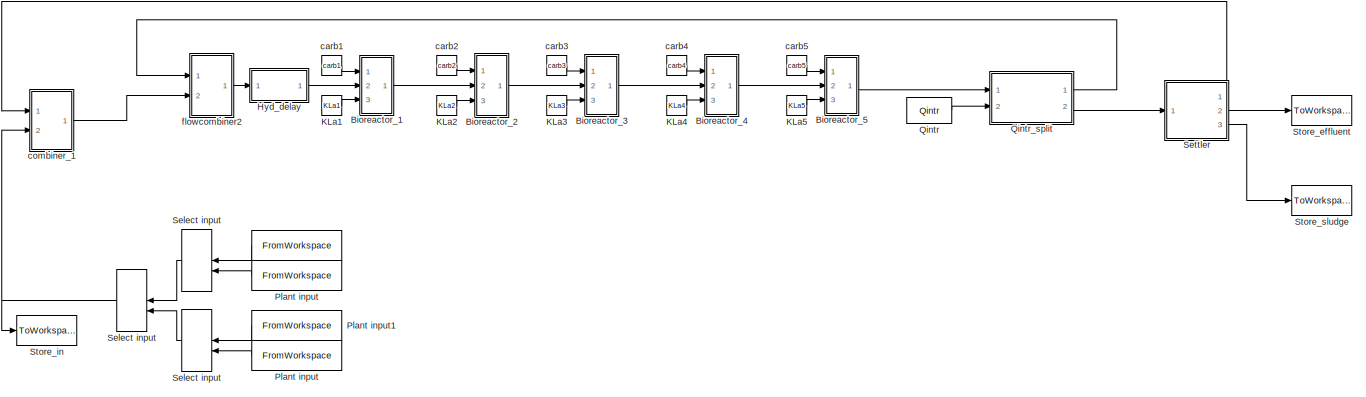
[diagram: root canvas - part 1/2, most of the canvas]
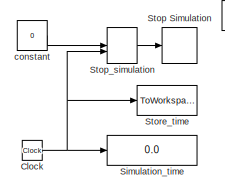
[diagram: root canvas - part 2/2, bottom left region]
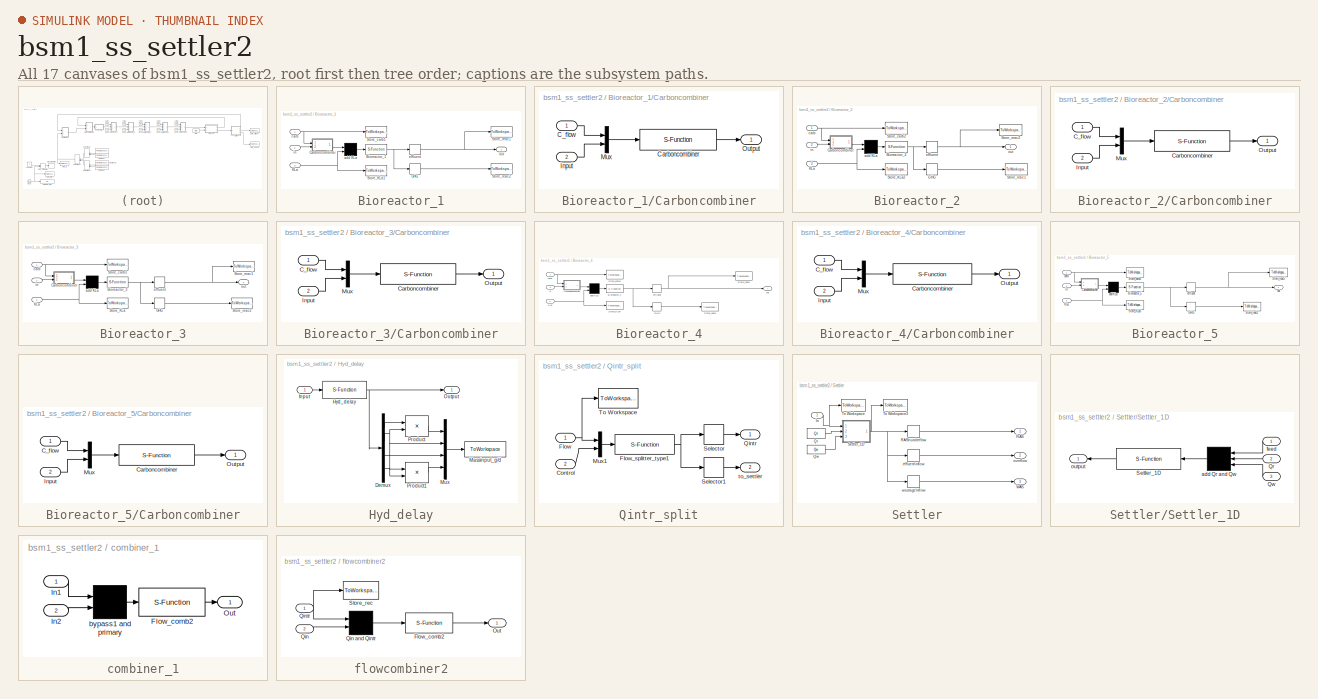
[diagram: thumbnail index - all 17 canvases of the model, root first then tree order]
MODEL bsm1_ss_settler2
KIND model
BLOCK [FromWorkspace]  
  OutputAfterFinalValue = Holding final value
  SID = 649
  VariableName = CONSTINFLUENT
BLOCK [ManualSwitch]  Select input
  SID = 650
BLOCK [Constant]  constant
  SID = 2
  Value = 0
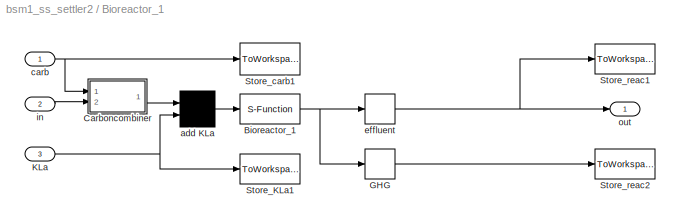
BLOCK [SubSystem] Bioreactor_1
  FunctionWithSeparateData = off
  MaskHideContents = off
  MinAlgLoopOccurrences = off
  Opaque = off
  Ports = [3, 1]
  PropExecContextOutsideSubsystem = off
  RTWSystemCode = Auto
  RequestExecContextInheritance = off
  SID = 511
BLOCK [S-Function] Bioreactor_1/Bioreactor_1
  EnableBusSupport = off
  FunctionName = asm1_bsm1
  Parameters = XINIT1,PAR1,VOL1,SOSAT1,TEMPMODEL,ACTIVATE
  Ports = [1, 1]
  SID = 515
BLOCK [SubSystem] Bioreactor_1/Carboncombiner
  FunctionWithSeparateData = off
  MaskHideContents = off
  MinAlgLoopOccurrences = off
  Opaque = off
  Ports = [2, 1]
  PropExecContextOutsideSubsystem = off
  RTWSystemCode = Auto
  RequestExecContextInheritance = off
  SID = 516
BLOCK [Inport] Bioreactor_1/Carboncombiner/C_flow
  IconDisplay = Port number
  SID = 517
BLOCK [S-Function] Bioreactor_1/Carboncombiner/Carboncombiner
  EnableBusSupport = off
  FunctionName = carboncombiner_bsm1
  Parameters = CARBONSOURCECONC
  Ports = [1, 1]
  SID = 519
BLOCK [Inport] Bioreactor_1/Carboncombiner/Input
  IconDisplay = Port number
  Port = 2
  SID = 518
BLOCK [Mux] Bioreactor_1/Carboncombiner/Mux
  DisplayOption = bar
  Inputs = 2
  Ports = [2, 1]
  SID = 520
BLOCK [Outport] Bioreactor_1/Carboncombiner/Output
  IconDisplay = Port number
  SID = 521
BLOCK [Selector] Bioreactor_1/GHG
  IndexOptions = Index vector (dialog)
  Indices = [27:29]
  InputPortWidth = 29
  OutputSizes = 1
  Ports = [1, 1]
  SID = 522
BLOCK [Inport] Bioreactor_1/KLa
  IconDisplay = Port number
  Port = 3
  SID = 514
BLOCK [ToWorkspace] Bioreactor_1/Store_KLa1
  MaxDataPoints = inf
  Ports = [1]
  SID = 523
  SampleTime = -1
  VariableName = kla1in
BLOCK [ToWorkspace] Bioreactor_1/Store_carb1
  MaxDataPoints = inf
  Ports = [1]
  SID = 524
  SampleTime = -1
  VariableName = carbon1in
BLOCK [ToWorkspace] Bioreactor_1/Store_reac1
  MaxDataPoints = inf
  Ports = [1]
  SID = 525
  SampleTime = -1
  VariableName = reac1
BLOCK [ToWorkspace] Bioreactor_1/Store_reac2
  MaxDataPoints = inf
  Ports = [1]
  SID = 526
  SampleTime = -1
  VariableName = GHG_reac1
BLOCK [Mux] Bioreactor_1/add KLa
  Inputs = 2
  Ports = [2, 1]
  SID = 527
BLOCK [Inport] Bioreactor_1/carb
  IconDisplay = Port number
  SID = 512
BLOCK [Selector] Bioreactor_1/effluent
  IndexOptions = Index vector (dialog)
  Indices = [1:26]
  InputPortWidth = 29
  OutputSizes = 1
  Ports = [1, 1]
  SID = 528
BLOCK [Inport] Bioreactor_1/in
  IconDisplay = Port number
  Port = 2
  SID = 513
BLOCK [Outport] Bioreactor_1/out
  IconDisplay = Port number
  SID = 529
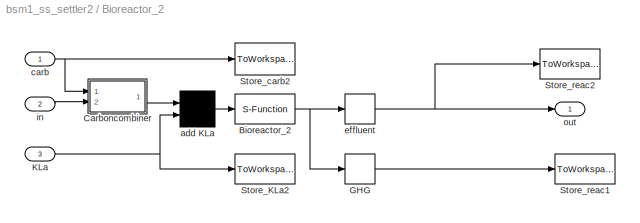
BLOCK [SubSystem] Bioreactor_2
  FunctionWithSeparateData = off
  MaskHideContents = off
  MinAlgLoopOccurrences = off
  Opaque = off
  Ports = [3, 1]
  PropExecContextOutsideSubsystem = off
  RTWSystemCode = Auto
  RequestExecContextInheritance = off
  SID = 530
BLOCK [S-Function] Bioreactor_2/Bioreactor_2
  EnableBusSupport = off
  FunctionName = asm1_bsm1
  Parameters = XINIT2,PAR2,VOL2,SOSAT2,TEMPMODEL,ACTIVATE
  Ports = [1, 1]
  SID = 534
BLOCK [SubSystem] Bioreactor_2/Carboncombiner
  FunctionWithSeparateData = off
  MaskHideContents = off
  MinAlgLoopOccurrences = off
  Opaque = off
  Ports = [2, 1]
  PropExecContextOutsideSubsystem = off
  RTWSystemCode = Auto
  RequestExecContextInheritance = off
  SID = 535
BLOCK [Inport] Bioreactor_2/Carboncombiner/C_flow
  IconDisplay = Port number
  SID = 536
BLOCK [S-Function] Bioreactor_2/Carboncombiner/Carboncombiner
  EnableBusSupport = off
  FunctionName = carboncombiner_bsm1
  Parameters = CARBONSOURCECONC
  Ports = [1, 1]
  SID = 538
BLOCK [Inport] Bioreactor_2/Carboncombiner/Input
  IconDisplay = Port number
  Port = 2
  SID = 537
BLOCK [Mux] Bioreactor_2/Carboncombiner/Mux
  DisplayOption = bar
  Inputs = 2
  Ports = [2, 1]
  SID = 539
BLOCK [Outport] Bioreactor_2/Carboncombiner/Output
  IconDisplay = Port number
  SID = 540
BLOCK [Selector] Bioreactor_2/GHG
  IndexOptions = Index vector (dialog)
  Indices = [27:29]
  InputPortWidth = 29
  OutputSizes = 1
  Ports = [1, 1]
  SID = 541
BLOCK [Inport] Bioreactor_2/KLa
  IconDisplay = Port number
  Port = 3
  SID = 533
BLOCK [ToWorkspace] Bioreactor_2/Store_KLa2
  MaxDataPoints = inf
  Ports = [1]
  SID = 542
  SampleTime = -1
  VariableName = kla2in
BLOCK [ToWorkspace] Bioreactor_2/Store_carb2
  MaxDataPoints = inf
  Ports = [1]
  SID = 543
  SampleTime = -1
  VariableName = carbon2in
BLOCK [ToWorkspace] Bioreactor_2/Store_reac1
  MaxDataPoints = inf
  Ports = [1]
  SID = 544
  SampleTime = -1
  VariableName = GHG_reac2
BLOCK [ToWorkspace] Bioreactor_2/Store_reac2
  MaxDataPoints = inf
  Ports = [1]
  SID = 545
  SampleTime = -1
  VariableName = reac2
BLOCK [Mux] Bioreactor_2/add KLa
  Inputs = 2
  Ports = [2, 1]
  SID = 546
BLOCK [Inport] Bioreactor_2/carb
  IconDisplay = Port number
  SID = 531
BLOCK [Selector] Bioreactor_2/effluent
  IndexOptions = Index vector (dialog)
  Indices = [1:26]
  InputPortWidth = 29
  OutputSizes = 1
  Ports = [1, 1]
  SID = 547
BLOCK [Inport] Bioreactor_2/in
  IconDisplay = Port number
  Port = 2
  SID = 532
BLOCK [Outport] Bioreactor_2/out
  IconDisplay = Port number
  SID = 548
BLOCK [SubSystem] Bioreactor_3
  FunctionWithSeparateData = off
  MaskHideContents = off
  MinAlgLoopOccurrences = off
  Opaque = off
  Ports = [3, 1]
  PropExecContextOutsideSubsystem = off
  RTWSystemCode = Auto
  RequestExecContextInheritance = off
  SID = 549
BLOCK [S-Function] Bioreactor_3/Bioreactor_3
  EnableBusSupport = off
  FunctionName = asm1_bsm1
  Parameters = XINIT3,PAR3,VOL3,SOSAT3,TEMPMODEL,ACTIVATE
  Ports = [1, 1]
  SID = 553
BLOCK [SubSystem] Bioreactor_3/Carboncombiner
  FunctionWithSeparateData = off
  MaskHideContents = off
  MinAlgLoopOccurrences = off
  Opaque = off
  Ports = [2, 1]
  PropExecContextOutsideSubsystem = off
  RTWSystemCode = Auto
  RequestExecContextInheritance = off
  SID = 554
BLOCK [Inport] Bioreactor_3/Carboncombiner/C_flow
  IconDisplay = Port number
  SID = 555
BLOCK [S-Function] Bioreactor_3/Carboncombiner/Carboncombiner
  EnableBusSupport = off
  FunctionName = carboncombiner_bsm1
  Parameters = CARBONSOURCECONC
  Ports = [1, 1]
  SID = 557
BLOCK [Inport] Bioreactor_3/Carboncombiner/Input
  IconDisplay = Port number
  Port = 2
  SID = 556
BLOCK [Mux] Bioreactor_3/Carboncombiner/Mux
  DisplayOption = bar
  Inputs = 2
  Ports = [2, 1]
  SID = 558
BLOCK [Outport] Bioreactor_3/Carboncombiner/Output
  IconDisplay = Port number
  SID = 559
BLOCK [Selector] Bioreactor_3/GHG
  IndexOptions = Index vector (dialog)
  Indices = [27:29]
  InputPortWidth = 29
  OutputSizes = 1
  Ports = [1, 1]
  SID = 560
BLOCK [Inport] Bioreactor_3/KLa
  IconDisplay = Port number
  Port = 3
  SID = 552
BLOCK [ToWorkspace] Bioreactor_3/Store_KLa
  MaxDataPoints = inf
  Ports = [1]
  SID = 561
  SampleTime = -1
  VariableName = kla3in
BLOCK [ToWorkspace] Bioreactor_3/Store_carb3
  MaxDataPoints = inf
  Ports = [1]
  SID = 562
  SampleTime = -1
  VariableName = carbon3in
BLOCK [ToWorkspace] Bioreactor_3/Store_reac1
  MaxDataPoints = inf
  Ports = [1]
  SID = 563
  SampleTime = -1
  VariableName = reac3
BLOCK [ToWorkspace] Bioreactor_3/Store_reac2
  MaxDataPoints = inf
  Ports = [1]
  SID = 564
  SampleTime = -1
  VariableName = GHG_reac3
BLOCK [Mux] Bioreactor_3/add KLa
  Inputs = 2
  Ports = [2, 1]
  SID = 565
BLOCK [Inport] Bioreactor_3/carb
  IconDisplay = Port number
  SID = 550
BLOCK [Selector] Bioreactor_3/effluent
  IndexOptions = Index vector (dialog)
  Indices = [1:26]
  InputPortWidth = 29
  OutputSizes = 1
  Ports = [1, 1]
  SID = 566
BLOCK [Inport] Bioreactor_3/in
  IconDisplay = Port number
  Port = 2
  SID = 551
BLOCK [Outport] Bioreactor_3/out
  IconDisplay = Port number
  SID = 567
BLOCK [SubSystem] Bioreactor_4
  FunctionWithSeparateData = off
  MaskHideContents = off
  MinAlgLoopOccurrences = off
  Opaque = off
  Ports = [3, 1]
  PropExecContextOutsideSubsystem = off
  RTWSystemCode = Auto
  RequestExecContextInheritance = off
  SID = 568
BLOCK [S-Function] Bioreactor_4/Bioreactor_4
  EnableBusSupport = off
  FunctionName = asm1_bsm1
  Parameters = XINIT4,PAR4,VOL4,SOSAT4,TEMPMODEL,ACTIVATE
  Ports = [1, 1]
  SID = 572
BLOCK [SubSystem] Bioreactor_4/Carboncombiner
  FunctionWithSeparateData = off
  MaskHideContents = off
  MinAlgLoopOccurrences = off
  Opaque = off
  Ports = [2, 1]
  PropExecContextOutsideSubsystem = off
  RTWSystemCode = Auto
  RequestExecContextInheritance = off
  SID = 573
BLOCK [Inport] Bioreactor_4/Carboncombiner/C_flow
  IconDisplay = Port number
  SID = 574
BLOCK [S-Function] Bioreactor_4/Carboncombiner/Carboncombiner
  EnableBusSupport = off
  FunctionName = carboncombiner_bsm1
  Parameters = CARBONSOURCECONC
  Ports = [1, 1]
  SID = 576
BLOCK [Inport] Bioreactor_4/Carboncombiner/Input
  IconDisplay = Port number
  Port = 2
  SID = 575
BLOCK [Mux] Bioreactor_4/Carboncombiner/Mux
  DisplayOption = bar
  Inputs = 2
  Ports = [2, 1]
  SID = 577
BLOCK [Outport] Bioreactor_4/Carboncombiner/Output
  IconDisplay = Port number
  SID = 578
BLOCK [Selector] Bioreactor_4/GHG
  IndexOptions = Index vector (dialog)
  Indices = [27:29]
  InputPortWidth = 29
  OutputSizes = 1
  Ports = [1, 1]
  SID = 579
BLOCK [Inport] Bioreactor_4/KLa
  IconDisplay = Port number
  Port = 3
  SID = 571
BLOCK [ToWorkspace] Bioreactor_4/Store_KLa4
  MaxDataPoints = inf
  Ports = [1]
  SID = 580
  SampleTime = -1
  VariableName = kla4in
BLOCK [ToWorkspace] Bioreactor_4/Store_carb4
  MaxDataPoints = inf
  Ports = [1]
  SID = 581
  SampleTime = -1
  VariableName = carbon4in
BLOCK [ToWorkspace] Bioreactor_4/Store_reac1
  MaxDataPoints = inf
  Ports = [1]
  SID = 582
  SampleTime = -1
  VariableName = GHG_reac4
BLOCK [ToWorkspace] Bioreactor_4/Store_reac4
  MaxDataPoints = inf
  Ports = [1]
  SID = 583
  SampleTime = -1
  VariableName = reac4
BLOCK [Mux] Bioreactor_4/add KLa
  Inputs = 2
  Ports = [2, 1]
  SID = 584
BLOCK [Inport] Bioreactor_4/carb
  IconDisplay = Port number
  SID = 569
BLOCK [Selector] Bioreactor_4/effluent
  IndexOptions = Index vector (dialog)
  Indices = [1:26]
  InputPortWidth = 29
  OutputSizes = 1
  Ports = [1, 1]
  SID = 585
BLOCK [Inport] Bioreactor_4/in
  IconDisplay = Port number
  Port = 2
  SID = 570
BLOCK [Outport] Bioreactor_4/out
  IconDisplay = Port number
  SID = 586
BLOCK [SubSystem] Bioreactor_5
  FunctionWithSeparateData = off
  MaskHideContents = off
  MinAlgLoopOccurrences = off
  Opaque = off
  Ports = [3, 1]
  PropExecContextOutsideSubsystem = off
  RTWSystemCode = Auto
  RequestExecContextInheritance = off
  SID = 587
BLOCK [S-Function] Bioreactor_5/Bioreactor_5
  EnableBusSupport = off
  FunctionName = asm1_bsm1
  Parameters = XINIT5,PAR5,VOL5,SOSAT5,TEMPMODEL,ACTIVATE
  Ports = [1, 1]
  SID = 591
BLOCK [SubSystem] Bioreactor_5/Carboncombiner
  FunctionWithSeparateData = off
  MaskHideContents = off
  MinAlgLoopOccurrences = off
  Opaque = off
  Ports = [2, 1]
  PropExecContextOutsideSubsystem = off
  RTWSystemCode = Auto
  RequestExecContextInheritance = off
  SID = 592
BLOCK [Inport] Bioreactor_5/Carboncombiner/C_flow
  IconDisplay = Port number
  SID = 593
BLOCK [S-Function] Bioreactor_5/Carboncombiner/Carboncombiner
  EnableBusSupport = off
  FunctionName = carboncombiner_bsm1
  Parameters = CARBONSOURCECONC
  Ports = [1, 1]
  SID = 595
BLOCK [Inport] Bioreactor_5/Carboncombiner/Input
  IconDisplay = Port number
  Port = 2
  SID = 594
BLOCK [Mux] Bioreactor_5/Carboncombiner/Mux
  DisplayOption = bar
  Inputs = 2
  Ports = [2, 1]
  SID = 596
BLOCK [Outport] Bioreactor_5/Carboncombiner/Output
  IconDisplay = Port number
  SID = 597
BLOCK [Selector] Bioreactor_5/GHG
  IndexOptions = Index vector (dialog)
  Indices = [27:29]
  InputPortWidth = 29
  OutputSizes = 1
  Ports = [1, 1]
  SID = 598
BLOCK [Inport] Bioreactor_5/KLa
  IconDisplay = Port number
  Port = 3
  SID = 590
BLOCK [ToWorkspace] Bioreactor_5/Store_KLa5
  MaxDataPoints = inf
  Ports = [1]
  SID = 599
  SampleTime = -1
  VariableName = kla5in
BLOCK [ToWorkspace] Bioreactor_5/Store_carb5
  MaxDataPoints = inf
  Ports = [1]
  SID = 600
  SampleTime = -1
  VariableName = carbon5in
BLOCK [ToWorkspace] Bioreactor_5/Store_reac1
  MaxDataPoints = inf
  Ports = [1]
  SID = 601
  SampleTime = -1
  VariableName = GHG_reac5
BLOCK [ToWorkspace] Bioreactor_5/Store_reac5
  MaxDataPoints = inf
  Ports = [1]
  SID = 602
  SampleTime = -1
  VariableName = reac5
BLOCK [Mux] Bioreactor_5/add KLa
  Inputs = 2
  Ports = [2, 1]
  SID = 603
BLOCK [Inport] Bioreactor_5/carb
  IconDisplay = Port number
  SID = 588
BLOCK [Selector] Bioreactor_5/effluent
  IndexOptions = Index vector (dialog)
  Indices = [1:26]
  InputPortWidth = 29
  OutputSizes = 1
  Ports = [1, 1]
  SID = 604
BLOCK [Inport] Bioreactor_5/in
  IconDisplay = Port number
  Port = 2
  SID = 589
BLOCK [Outport] Bioreactor_5/out
  IconDisplay = Port number
  SID = 605
BLOCK [Clock] Clock
  SID = 176
BLOCK [SubSystem] Hyd_delay
  FunctionWithSeparateData = off
  MaskHideContents = off
  MinAlgLoopOccurrences = off
  Opaque = off
  Ports = [1, 1]
  PropExecContextOutsideSubsystem = off
  RTWSystemCode = Auto
  RequestExecContextInheritance = off
  SID = 606
BLOCK [Demux] Hyd_delay/Demux
  Outputs = [14,1,1,10]
  Ports = [1, 4]
  SID = 608
BLOCK [S-Function] Hyd_delay/Hyd_delay
  EnableBusSupport = off
  FunctionName = hyddelayv3_bsm1
  Parameters = XINITDELAY,PAR1,T
  Ports = [1, 1]
  SID = 609
BLOCK [Inport] Hyd_delay/Input
  IconDisplay = Port number
  SID = 607
BLOCK [ToWorkspace] Hyd_delay/Massinput_g//d
  MaxDataPoints = inf
  Ports = [1]
  SID = 610
  SampleTime = -1
  VariableName = ASinput
BLOCK [Mux] Hyd_delay/Mux
  DisplayOption = bar
  Ports = [4, 1]
  SID = 611
BLOCK [Outport] Hyd_delay/Output
  IconDisplay = Port number
  SID = 614
BLOCK [Product] Hyd_delay/Product
  InputSameDT = off
  Ports = [2, 1]
  RndMeth = Floor
  SID = 612
BLOCK [Product] Hyd_delay/Product1
  InputSameDT = off
  Ports = [2, 1]
  RndMeth = Floor
  SID = 613
BLOCK [Constant] KLa1
  SID = 615
  Value = KLa1
BLOCK [Constant] KLa2
  SID = 616
  Value = KLa2
BLOCK [Constant] KLa3
  SID = 617
  Value = KLa3
BLOCK [Constant] KLa4
  SID = 618
  Value = KLa4
BLOCK [Constant] KLa5
  SID = 619
  Value = KLa5
BLOCK [FromWorkspace] Plant input
  Interpolate = off
  OutputAfterFinalValue = Holding final value
  SID = 651
  VariableName = DRYINFLUENT
BLOCK [FromWorkspace] Plant input 
  OutputAfterFinalValue = Holding final value
  SID = 652
  VariableName = STORMINFLUENT
BLOCK [FromWorkspace] Plant input1
  OutputAfterFinalValue = Holding final value
  SID = 653
  VariableName = RAININFLUENT
BLOCK [Constant] Qintr
  SID = 620
  Value = Qintr
BLOCK [SubSystem] Qintr_split
  FunctionWithSeparateData = off
  MaskHideContents = off
  MinAlgLoopOccurrences = off
  Opaque = off
  Ports = [2, 2]
  PropExecContextOutsideSubsystem = off
  RTWSystemCode = Auto
  RequestExecContextInheritance = off
  SID = 621
BLOCK [Inport] Qintr_split/Control
  IconDisplay = Port number
  Port = 2
  SID = 623
BLOCK [Inport] Qintr_split/Flow
  IconDisplay = Port number
  SID = 622
BLOCK [S-Function] Qintr_split/Flow_splitter_type1
  EnableBusSupport = off
  FunctionName = flowsplitter_bsm1
  Parameters = Qintrtype
  Ports = [1, 1]
  SID = 624
BLOCK [Mux] Qintr_split/Mux1
  DisplayOption = bar
  Inputs = 2
  Ports = [2, 1]
  SID = 625
BLOCK [Outport] Qintr_split/Qintr
  IconDisplay = Port number
  SID = 628
BLOCK [Selector] Qintr_split/Selector
  IndexOptions = Index vector (dialog)
  Indices = [1:26]
  InputPortWidth = 52
  OutputSizes = 1
  Ports = [1, 1]
  SID = 626
BLOCK [Selector] Qintr_split/Selector1
  IndexOptions = Index vector (dialog)
  Indices = [27:52]
  InputPortWidth = 52
  OutputSizes = 1
  Ports = [1, 1]
  SID = 627
BLOCK [ToWorkspace] Qintr_split/To Workspace
  MaxDataPoints = inf
  Ports = [1]
  SID = 657
  VariableName = feed1
BLOCK [Outport] Qintr_split/to_settler
  IconDisplay = Port number
  Port = 2
  SID = 629
BLOCK [ManualSwitch] Select input
  SID = 654
BLOCK [ManualSwitch] Select input 
  CurrentSetting = 0
  SID = 655
BLOCK [SubSystem] Settler
  FunctionWithSeparateData = off
  MaskHideContents = off
  MinAlgLoopOccurrences = off
  Opaque = off
  Ports = [1, 3]
  PropExecContextOutsideSubsystem = off
  RTWSystemCode = Auto
  RequestExecContextInheritance = off
  SID = 292
BLOCK [Inport] Settler/In
  IconDisplay = Port number
  SID = 293
BLOCK [Constant] Settler/Qr
  SID = 294
  Value = Qr
BLOCK [Constant] Settler/Qw
  SID = 295
  Value = Qw
BLOCK [Outport] Settler/RAS
  IconDisplay = Port number
  SID = 308
BLOCK [Selector] Settler/RAS\nunderflow
  IndexOptions = Index vector (dialog)
  Indices = [1:26]
  InputPortWidth = 215
  OutputSizes = 1
  Ports = [1, 1]
  SID = 296
BLOCK [SubSystem] Settler/Settler_1D
  FunctionWithSeparateData = off
  MaskHideContents = off
  MinAlgLoopOccurrences = off
  Opaque = off
  Ports = [3, 1]
  PropExecContextOutsideSubsystem = off
  RTWSystemCode = Auto
  RequestExecContextInheritance = off
  SID = 297
BLOCK [Inport] Settler/Settler_1D/Qr
  IconDisplay = Port number
  Port = 2
  SID = 299
BLOCK [Inport] Settler/Settler_1D/Qw
  IconDisplay = Port number
  Port = 3
  SID = 300
BLOCK [S-Function] Settler/Settler_1D/Settler_1D
  EnableBusSupport = off
  FunctionName = settler1dv4_4_UJ
  Parameters = SETTLERINIT,SETTLERPAR,DIM,LAYER,TEMPMODEL, MODELTYPE
  Ports = [1, 1]
  SID = 301
BLOCK [Mux] Settler/Settler_1D/add Qr and Qw
  Inputs = 3
  Ports = [3, 1]
  SID = 302
BLOCK [Inport] Settler/Settler_1D/feed
  IconDisplay = Port number
  SID = 298
BLOCK [Outport] Settler/Settler_1D/output
  IconDisplay = Port number
  SID = 303
BLOCK [ToWorkspace] Settler/To Workspace
  MaxDataPoints = inf
  Ports = [1]
  SID = 304
  VariableName = feed
BLOCK [ToWorkspace] Settler/To Workspace3
  MaxDataPoints = inf
  Ports = [1]
  SID = 305
  VariableName = settler
BLOCK [Outport] Settler/WAS
  IconDisplay = Port number
  Port = 3
  SID = 310
BLOCK [Selector] Settler/effluent\nflow
  IndexOptions = Index vector (dialog)
  Indices = [28:53]
  InputPortWidth = 215
  OutputSizes = 1
  Ports = [1, 1]
  SID = 306
BLOCK [Outport] Settler/overflow
  IconDisplay = Port number
  Port = 2
  SID = 309
BLOCK [Selector] Settler/wastage\nflow
  IndexOptions = Index vector (dialog)
  Indices = [1:14, 27, 16:26]
  InputPortWidth = 215
  OutputSizes = 1
  Ports = [1, 1]
  SID = 307
BLOCK [Display] Simulation_time
  Decimation = 1
  Lockdown = off
  Ports = [1]
  SID = 311
BLOCK [Stop] Stop Simulation
  SID = 312
BLOCK [ManualSwitch] Stop_simulation
  SID = 313
BLOCK [ToWorkspace] Store_effluent
  MaxDataPoints = inf
  Ports = [1]
  SID = 333
  VariableName = effluent
BLOCK [ToWorkspace] Store_in
  MaxDataPoints = inf
  Ports = [1]
  SID = 656
  SampleTime = -1
  VariableName = in
BLOCK [ToWorkspace] Store_sludge
  MaxDataPoints = inf
  Ports = [1]
  SID = 335
  VariableName = sludge
BLOCK [ToWorkspace] Store_time
  MaxDataPoints = inf
  Ports = [1]
  SID = 336
  VariableName = time
BLOCK [Constant] carb1
  SID = 630
  Value = carb1
BLOCK [Constant] carb2
  SID = 631
  Value = carb2
BLOCK [Constant] carb3
  SID = 632
  Value = carb3
BLOCK [Constant] carb4
  SID = 633
  Value = carb4
BLOCK [Constant] carb5
  SID = 634
  Value = carb5
BLOCK [SubSystem] combiner_1
  FunctionWithSeparateData = off
  MaskHideContents = off
  MinAlgLoopOccurrences = off
  Opaque = off
  Ports = [2, 1]
  PropExecContextOutsideSubsystem = off
  RTWSystemCode = Auto
  RequestExecContextInheritance = off
  SID = 635
BLOCK [S-Function] combiner_1/Flow_comb2
  EnableBusSupport = off
  FunctionName = combiner_bsm1
  Ports = [1, 1]
  SID = 638
BLOCK [Inport] combiner_1/In1
  IconDisplay = Port number
  SID = 636
BLOCK [Inport] combiner_1/In2
  IconDisplay = Port number
  Port = 2
  SID = 637
BLOCK [Outport] combiner_1/Out
  IconDisplay = Port number
  SID = 640
BLOCK [Mux] combiner_1/bypass1 and primary
  Inputs = 2
  Ports = [2, 1]
  SID = 639
BLOCK [SubSystem] flowcombiner2
  FunctionWithSeparateData = off
  MaskHideContents = off
  MinAlgLoopOccurrences = off
  Opaque = off
  Ports = [2, 1]
  PropExecContextOutsideSubsystem = off
  RTWSystemCode = Auto
  RequestExecContextInheritance = off
  SID = 641
BLOCK [S-Function] flowcombiner2/Flow_comb2
  EnableBusSupport = off
  FunctionName = combiner_bsm1
  Ports = [1, 1]
  SID = 644
BLOCK [Outport] flowcombiner2/Out
  IconDisplay = Port number
  SID = 647
BLOCK [Inport] flowcombiner2/Qin
  IconDisplay = Port number
  Port = 2
  SID = 643
BLOCK [Mux] flowcombiner2/Qin and Qintr
  Inputs = 2
  Ports = [2, 1]
  SID = 645
BLOCK [Inport] flowcombiner2/Qintr
  IconDisplay = Port number
  SID = 642
BLOCK [ToWorkspace] flowcombiner2/Store_rec
  MaxDataPoints = inf
  Ports = [1]
  SID = 646
  VariableName = rec
LINE  :1 -> Select input:1
NET  Select input:1 -> Store_in:1, combiner_1:2
LINE  constant:1 -> Stop_simulation:1
NET Bioreactor_1/Bioreactor_1:1 -> Bioreactor_1/GHG:1, Bioreactor_1/effluent:1
LINE Bioreactor_1/Carboncombiner/C_flow:1 -> Bioreactor_1/Carboncombiner/Mux:1
LINE Bioreactor_1/Carboncombiner/Carboncombiner:1 -> Bioreactor_1/Carboncombiner/Output:1
LINE Bioreactor_1/Carboncombiner/Input:1 -> Bioreactor_1/Carboncombiner/Mux:2
LINE Bioreactor_1/Carboncombiner/Mux:1 -> Bioreactor_1/Carboncombiner/Carboncombiner:1
LINE Bioreactor_1/Carboncombiner:1 -> Bioreactor_1/add KLa:1
LINE Bioreactor_1/GHG:1 -> Bioreactor_1/Store_reac2:1
NET Bioreactor_1/KLa:1 -> Bioreactor_1/Store_KLa1:1, Bioreactor_1/add KLa:2
LINE Bioreactor_1/add KLa:1 -> Bioreactor_1/Bioreactor_1:1
NET Bioreactor_1/carb:1 -> Bioreactor_1/Carboncombiner:1, Bioreactor_1/Store_carb1:1
NET Bioreactor_1/effluent:1 -> Bioreactor_1/Store_reac1:1, Bioreactor_1/out:1
LINE Bioreactor_1/in:1 -> Bioreactor_1/Carboncombiner:2
LINE Bioreactor_1:1 -> Bioreactor_2:2
NET Bioreactor_2/Bioreactor_2:1 -> Bioreactor_2/GHG:1, Bioreactor_2/effluent:1
LINE Bioreactor_2/Carboncombiner/C_flow:1 -> Bioreactor_2/Carboncombiner/Mux:1
LINE Bioreactor_2/Carboncombiner/Carboncombiner:1 -> Bioreactor_2/Carboncombiner/Output:1
LINE Bioreactor_2/Carboncombiner/Input:1 -> Bioreactor_2/Carboncombiner/Mux:2
LINE Bioreactor_2/Carboncombiner/Mux:1 -> Bioreactor_2/Carboncombiner/Carboncombiner:1
LINE Bioreactor_2/Carboncombiner:1 -> Bioreactor_2/add KLa:1
LINE Bioreactor_2/GHG:1 -> Bioreactor_2/Store_reac1:1
NET Bioreactor_2/KLa:1 -> Bioreactor_2/Store_KLa2:1, Bioreactor_2/add KLa:2
LINE Bioreactor_2/add KLa:1 -> Bioreactor_2/Bioreactor_2:1
NET Bioreactor_2/carb:1 -> Bioreactor_2/Carboncombiner:1, Bioreactor_2/Store_carb2:1
NET Bioreactor_2/effluent:1 -> Bioreactor_2/Store_reac2:1, Bioreactor_2/out:1
LINE Bioreactor_2/in:1 -> Bioreactor_2/Carboncombiner:2
LINE Bioreactor_2:1 -> Bioreactor_3:2
NET Bioreactor_3/Bioreactor_3:1 -> Bioreactor_3/GHG:1, Bioreactor_3/effluent:1
LINE Bioreactor_3/Carboncombiner/C_flow:1 -> Bioreactor_3/Carboncombiner/Mux:1
LINE Bioreactor_3/Carboncombiner/Carboncombiner:1 -> Bioreactor_3/Carboncombiner/Output:1
LINE Bioreactor_3/Carboncombiner/Input:1 -> Bioreactor_3/Carboncombiner/Mux:2
LINE Bioreactor_3/Carboncombiner/Mux:1 -> Bioreactor_3/Carboncombiner/Carboncombiner:1
LINE Bioreactor_3/Carboncombiner:1 -> Bioreactor_3/add KLa:1
LINE Bioreactor_3/GHG:1 -> Bioreactor_3/Store_reac2:1
NET Bioreactor_3/KLa:1 -> Bioreactor_3/Store_KLa:1, Bioreactor_3/add KLa:2
LINE Bioreactor_3/add KLa:1 -> Bioreactor_3/Bioreactor_3:1
NET Bioreactor_3/carb:1 -> Bioreactor_3/Carboncombiner:1, Bioreactor_3/Store_carb3:1
NET Bioreactor_3/effluent:1 -> Bioreactor_3/Store_reac1:1, Bioreactor_3/out:1
LINE Bioreactor_3/in:1 -> Bioreactor_3/Carboncombiner:2
LINE Bioreactor_3:1 -> Bioreactor_4:2
NET Bioreactor_4/Bioreactor_4:1 -> Bioreactor_4/GHG:1, Bioreactor_4/effluent:1
LINE Bioreactor_4/Carboncombiner/C_flow:1 -> Bioreactor_4/Carboncombiner/Mux:1
LINE Bioreactor_4/Carboncombiner/Carboncombiner:1 -> Bioreactor_4/Carboncombiner/Output:1
LINE Bioreactor_4/Carboncombiner/Input:1 -> Bioreactor_4/Carboncombiner/Mux:2
LINE Bioreactor_4/Carboncombiner/Mux:1 -> Bioreactor_4/Carboncombiner/Carboncombiner:1
LINE Bioreactor_4/Carboncombiner:1 -> Bioreactor_4/add KLa:1
LINE Bioreactor_4/GHG:1 -> Bioreactor_4/Store_reac1:1
NET Bioreactor_4/KLa:1 -> Bioreactor_4/Store_KLa4:1, Bioreactor_4/add KLa:2
LINE Bioreactor_4/add KLa:1 -> Bioreactor_4/Bioreactor_4:1
NET Bioreactor_4/carb:1 -> Bioreactor_4/Carboncombiner:1, Bioreactor_4/Store_carb4:1
NET Bioreactor_4/effluent:1 -> Bioreactor_4/Store_reac4:1, Bioreactor_4/out:1
LINE Bioreactor_4/in:1 -> Bioreactor_4/Carboncombiner:2
LINE Bioreactor_4:1 -> Bioreactor_5:2
NET Bioreactor_5/Bioreactor_5:1 -> Bioreactor_5/GHG:1, Bioreactor_5/effluent:1
LINE Bioreactor_5/Carboncombiner/C_flow:1 -> Bioreactor_5/Carboncombiner/Mux:1
LINE Bioreactor_5/Carboncombiner/Carboncombiner:1 -> Bioreactor_5/Carboncombiner/Output:1
LINE Bioreactor_5/Carboncombiner/Input:1 -> Bioreactor_5/Carboncombiner/Mux:2
LINE Bioreactor_5/Carboncombiner/Mux:1 -> Bioreactor_5/Carboncombiner/Carboncombiner:1
LINE Bioreactor_5/Carboncombiner:1 -> Bioreactor_5/add KLa:1
LINE Bioreactor_5/GHG:1 -> Bioreactor_5/Store_reac1:1
NET Bioreactor_5/KLa:1 -> Bioreactor_5/Store_KLa5:1, Bioreactor_5/add KLa:2
LINE Bioreactor_5/add KLa:1 -> Bioreactor_5/Bioreactor_5:1
NET Bioreactor_5/carb:1 -> Bioreactor_5/Carboncombiner:1, Bioreactor_5/Store_carb5:1
NET Bioreactor_5/effluent:1 -> Bioreactor_5/Store_reac5:1, Bioreactor_5/out:1
LINE Bioreactor_5/in:1 -> Bioreactor_5/Carboncombiner:2
LINE Bioreactor_5:1 -> Qintr_split:1
NET Clock:1 -> Simulation_time:1, Stop_simulation:2, Store_time:1
LINE Hyd_delay/Demux:1 -> Hyd_delay/Product:1
NET Hyd_delay/Demux:2 -> Hyd_delay/Mux:2, Hyd_delay/Product1:1, Hyd_delay/Product:2
LINE Hyd_delay/Demux:3 -> Hyd_delay/Mux:3
LINE Hyd_delay/Demux:4 -> Hyd_delay/Product1:2
NET Hyd_delay/Hyd_delay:1 -> Hyd_delay/Demux:1, Hyd_delay/Output:1
LINE Hyd_delay/Input:1 -> Hyd_delay/Hyd_delay:1
LINE Hyd_delay/Mux:1 -> Hyd_delay/Massinput_g//d:1
LINE Hyd_delay/Product1:1 -> Hyd_delay/Mux:4
LINE Hyd_delay/Product:1 -> Hyd_delay/Mux:1
LINE Hyd_delay:1 -> Bioreactor_1:2
LINE KLa1:1 -> Bioreactor_1:3
LINE KLa2:1 -> Bioreactor_2:3
LINE KLa3:1 -> Bioreactor_3:3
LINE KLa4:1 -> Bioreactor_4:3
LINE KLa5:1 -> Bioreactor_5:3
LINE Plant input :1 -> Select input :2
LINE Plant input1:1 -> Select input :1
LINE Plant input:1 -> Select input:2
LINE Qintr:1 -> Qintr_split:2
LINE Qintr_split/Control:1 -> Qintr_split/Mux1:2
NET Qintr_split/Flow:1 -> Qintr_split/Mux1:1, Qintr_split/To Workspace:1
NET Qintr_split/Flow_splitter_type1:1 -> Qintr_split/Selector1:1, Qintr_split/Selector:1
LINE Qintr_split/Mux1:1 -> Qintr_split/Flow_splitter_type1:1
LINE Qintr_split/Selector1:1 -> Qintr_split/to_settler:1
LINE Qintr_split/Selector:1 -> Qintr_split/Qintr:1
LINE Qintr_split:1 -> flowcombiner2:1
LINE Qintr_split:2 -> Settler:1
LINE Select input :1 ->  Select input:2
LINE Select input:1 ->  Select input:1
NET Settler/In:1 -> Settler/Settler_1D:1, Settler/To Workspace:1
LINE Settler/Qr:1 -> Settler/Settler_1D:2
LINE Settler/Qw:1 -> Settler/Settler_1D:3
LINE Settler/RAS\nunderflow:1 -> Settler/RAS:1
LINE Settler/Settler_1D/Qr:1 -> Settler/Settler_1D/add Qr and Qw:2
LINE Settler/Settler_1D/Qw:1 -> Settler/Settler_1D/add Qr and Qw:3
LINE Settler/Settler_1D/Settler_1D:1 -> Settler/Settler_1D/output:1
LINE Settler/Settler_1D/add Qr and Qw:1 -> Settler/Settler_1D/Settler_1D:1
LINE Settler/Settler_1D/feed:1 -> Settler/Settler_1D/add Qr and Qw:1
NET Settler/Settler_1D:1 -> Settler/RAS\nunderflow:1, Settler/To Workspace3:1, Settler/effluent\nflow:1, Settler/wastage\nflow:1
LINE Settler/effluent\nflow:1 -> Settler/overflow:1
LINE Settler/wastage\nflow:1 -> Settler/WAS:1
LINE Settler:1 -> combiner_1:1
LINE Settler:2 -> Store_effluent:1
LINE Settler:3 -> Store_sludge:1
LINE Stop_simulation:1 -> Stop Simulation:1
LINE carb1:1 -> Bioreactor_1:1
LINE carb2:1 -> Bioreactor_2:1
LINE carb3:1 -> Bioreactor_3:1
LINE carb4:1 -> Bioreactor_4:1
LINE carb5:1 -> Bioreactor_5:1
LINE combiner_1/Flow_comb2:1 -> combiner_1/Out:1
LINE combiner_1/In1:1 -> combiner_1/bypass1 and primary:1
LINE combiner_1/In2:1 -> combiner_1/bypass1 and primary:2
LINE combiner_1/bypass1 and primary:1 -> combiner_1/Flow_comb2:1
LINE combiner_1:1 -> flowcombiner2:2
LINE flowcombiner2/Flow_comb2:1 -> flowcombiner2/Out:1
LINE flowcombiner2/Qin and Qintr:1 -> flowcombiner2/Flow_comb2:1
LINE flowcombiner2/Qin:1 -> flowcombiner2/Qin and Qintr:2
NET flowcombiner2/Qintr:1 -> flowcombiner2/Qin and Qintr:1, flowcombiner2/Store_rec:1
LINE flowcombiner2:1 -> Hyd_delay:1
note: NET lines group one-source signal fan-out (src -> all destinations, sorted); 1:1 wires keep LINE
